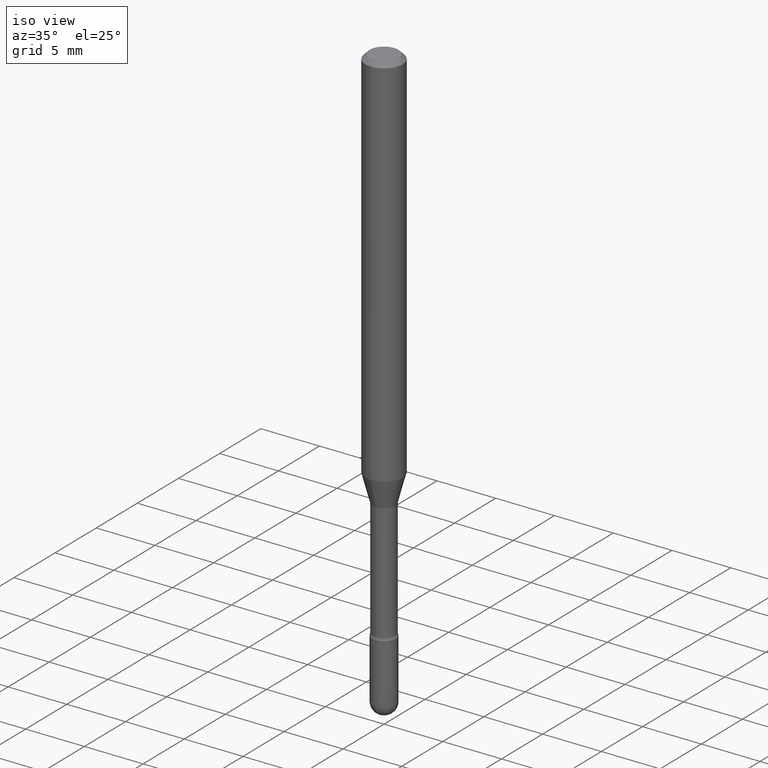
[diagram: clean part render]
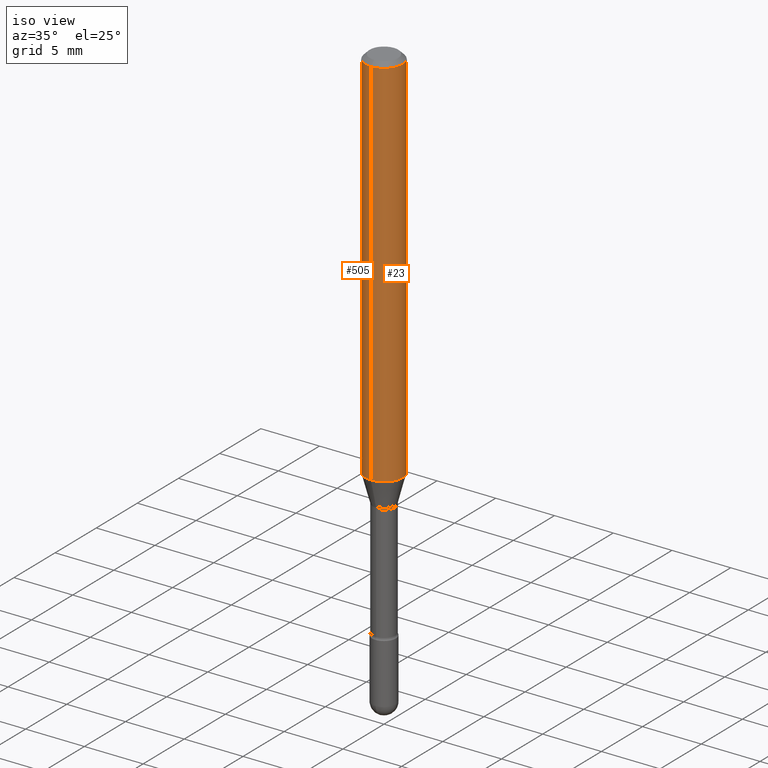
[diagram: same view with one multi-face feature highlighted, each face labeled with its STEP entity id]
A machine part, iso view. The highlighted faces form ONE feature: a constant-radius fillet chain: 2 tangent blend faces with common blend radius 1.5875 mm. The faces share edges in the B-rep.
Their STEP definitions:
[1] entity #505 (Cylinder):
#9 = EDGE_CURVE ( 'NONE', #51, #139, #204, .T. ) ;
#13 = CARTESIAN_POINT ( 'NONE',  ( 4.440892098500937762E-16, 0.06249999999999993755, -0.01500000000000030129 ) ) ;
#26 = VECTOR ( 'NONE', #31, 39.37007874015748143 ) ;
#31 = DIRECTION ( 'NONE',  ( -2.445487129029545488E-29, 3.491455099487080109E-15, 1.000000000000000000 ) ) ;
#51 = VERTEX_POINT ( 'NONE', #214 ) ;
#63 = FACE_OUTER_BOUND ( 'NONE', #565, .T. ) ;
#93 = CARTESIAN_POINT ( 'NONE',  ( 4.440892098500932831E-16, 0.06249999999999554523, -1.267071934891535356 ) ) ;
#103 = CYLINDRICAL_SURFACE ( 'NONE', #263, 0.06250000000000000000 ) ;
#106 = CARTESIAN_POINT ( 'NONE',  ( 3.668230693544338848E-31, -5.237182649230648981E-17, -0.01500000000000008271 ) ) ;
#107 = AXIS2_PLACEMENT_3D ( 'NONE', #106, #149, #326 ) ;
#111 = CARTESIAN_POINT ( 'NONE',  ( -1.169113584055446105E-44, 1.669184350826100908E-30, 4.780733988912460139E-16 ) ) ;
#120 = DIRECTION ( 'NONE',  ( -2.445487129029545488E-29, 3.491455099487080109E-15, 1.000000000000000000 ) ) ;
#123 = EDGE_CURVE ( 'NONE', #226, #498, #560, .T. ) ;
#139 = VERTEX_POINT ( 'NONE', #518 ) ;
#149 = DIRECTION ( 'NONE',  ( -2.445487129029545768E-29, 3.491455099487080109E-15, 1.000000000000000000 ) ) ;
#151 = DIRECTION ( 'NONE',  ( -2.445487129029545768E-29, 3.491455099487080109E-15, 1.000000000000000000 ) ) ;
#157 = CIRCLE ( 'NONE', #107, 0.06250000000000000000 ) ;
#204 = LINE ( 'NONE', #337, #403 ) ;
#214 = CARTESIAN_POINT ( 'NONE',  ( -4.364351673553609038E-16, -0.06250000000000446865, -1.267071934891534690 ) ) ;
#226 = VERTEX_POINT ( 'NONE', #93 ) ;
#263 = AXIS2_PLACEMENT_3D ( 'NONE', #111, #494, #284 ) ;
#273 = AXIS2_PLACEMENT_3D ( 'NONE', #421, #151, #324 ) ;
#275 = ORIENTED_EDGE ( 'NONE', *, *, #9, .T. ) ;
#284 = DIRECTION ( 'NONE',  ( -6.982962677686265922E-15, -1.000000000000000000, 3.491455099487080503E-15 ) ) ;
#324 = DIRECTION ( 'NONE',  ( -6.982962677686265922E-15, -1.000000000000000000, 4.370956789862821150E-15 ) ) ;
#326 = DIRECTION ( 'NONE',  ( -6.982962677686265922E-15, -1.000000000000000000, 3.483106191921935554E-15 ) ) ;
#333 = ORIENTED_EDGE ( 'NONE', *, *, #462, .F. ) ;
#337 = CARTESIAN_POINT ( 'NONE',  ( -4.364351673553916201E-16, -0.06250000000000000000, 6.962893426091885454E-16 ) ) ;
#390 = CARTESIAN_POINT ( 'NONE',  ( 4.440892098500625669E-16, 0.06250000000000000000, 2.598574551733035811E-16 ) ) ;
#403 = VECTOR ( 'NONE', #120, 39.37007874015748143 ) ;
#413 = EDGE_CURVE ( 'NONE', #226, #51, #512, .T. ) ;
#414 = ORIENTED_EDGE ( 'NONE', *, *, #123, .F. ) ;
#421 = CARTESIAN_POINT ( 'NONE',  ( 3.098608108331811398E-29, -4.423924768494011913E-15, -1.267071934891534912 ) ) ;
#452 = ORIENTED_EDGE ( 'NONE', *, *, #413, .T. ) ;
#462 = EDGE_CURVE ( 'NONE', #498, #139, #157, .T. ) ;
#494 = DIRECTION ( 'NONE',  ( -2.445487129029545768E-29, 3.491455099487080109E-15, 1.000000000000000000 ) ) ;
#498 = VERTEX_POINT ( 'NONE', #13 ) ;
#505 = ADVANCED_FACE ( 'NONE', ( #63 ), #103, .T. ) ;
#512 = CIRCLE ( 'NONE', #273, 0.06250000000000000000 ) ;
#518 = CARTESIAN_POINT ( 'NONE',  ( -4.364351673553912750E-16, -0.06250000000000005551, -0.01499999999999986587 ) ) ;
#560 = LINE ( 'NONE', #390, #26 ) ;
#565 = EDGE_LOOP ( 'NONE', ( #414, #452, #275, #333 ) ) ;
[2] entity #23 (Cylinder):
#9 = EDGE_CURVE ( 'NONE', #51, #139, #204, .T. ) ;
#13 = CARTESIAN_POINT ( 'NONE',  ( 4.440892098500937762E-16, 0.06249999999999993755, -0.01500000000000030129 ) ) ;
#23 = ADVANCED_FACE ( 'NONE', ( #433 ), #302, .T. ) ;
#26 = VECTOR ( 'NONE', #31, 39.37007874015748143 ) ;
#31 = DIRECTION ( 'NONE',  ( -2.445487129029545488E-29, 3.491455099487080109E-15, 1.000000000000000000 ) ) ;
#33 = DIRECTION ( 'NONE',  ( -2.445487129029545768E-29, 3.491455099487080109E-15, 1.000000000000000000 ) ) ;
#51 = VERTEX_POINT ( 'NONE', #214 ) ;
#76 = DIRECTION ( 'NONE',  ( -6.982962677686265922E-15, -1.000000000000000000, 4.370956789862821150E-15 ) ) ;
#86 = CARTESIAN_POINT ( 'NONE',  ( 3.098608108331811398E-29, -4.423924768494011913E-15, -1.267071934891534912 ) ) ;
#87 = CIRCLE ( 'NONE', #426, 0.06250000000000000000 ) ;
#91 = EDGE_CURVE ( 'NONE', #51, #226, #359, .T. ) ;
#93 = CARTESIAN_POINT ( 'NONE',  ( 4.440892098500932831E-16, 0.06249999999999554523, -1.267071934891535356 ) ) ;
#120 = DIRECTION ( 'NONE',  ( -2.445487129029545488E-29, 3.491455099487080109E-15, 1.000000000000000000 ) ) ;
#123 = EDGE_CURVE ( 'NONE', #226, #498, #560, .T. ) ;
#124 = CARTESIAN_POINT ( 'NONE',  ( -1.169113584055446105E-44, 1.669184350826100908E-30, 4.780733988912460139E-16 ) ) ;
#128 = DIRECTION ( 'NONE',  ( -2.445487129029545768E-29, 3.491455099487080109E-15, 1.000000000000000000 ) ) ;
#139 = VERTEX_POINT ( 'NONE', #518 ) ;
#195 = CARTESIAN_POINT ( 'NONE',  ( 3.668230693544338848E-31, -5.237182649230648981E-17, -0.01500000000000008271 ) ) ;
#199 = AXIS2_PLACEMENT_3D ( 'NONE', #124, #128, #298 ) ;
#200 = DIRECTION ( 'NONE',  ( -2.445487129029545768E-29, 3.491455099487080109E-15, 1.000000000000000000 ) ) ;
#204 = LINE ( 'NONE', #337, #403 ) ;
#214 = CARTESIAN_POINT ( 'NONE',  ( -4.364351673553609038E-16, -0.06250000000000446865, -1.267071934891534690 ) ) ;
#226 = VERTEX_POINT ( 'NONE', #93 ) ;
#276 = AXIS2_PLACEMENT_3D ( 'NONE', #86, #33, #76 ) ;
#298 = DIRECTION ( 'NONE',  ( -6.982962677686265922E-15, -1.000000000000000000, 3.491455099487080503E-15 ) ) ;
#302 = CYLINDRICAL_SURFACE ( 'NONE', #199, 0.06250000000000000000 ) ;
#311 = ORIENTED_EDGE ( 'NONE', *, *, #123, .T. ) ;
#314 = EDGE_LOOP ( 'NONE', ( #378, #311, #531, #542 ) ) ;
#337 = CARTESIAN_POINT ( 'NONE',  ( -4.364351673553916201E-16, -0.06250000000000000000, 6.962893426091885454E-16 ) ) ;
#357 = EDGE_CURVE ( 'NONE', #139, #498, #87, .T. ) ;
#359 = CIRCLE ( 'NONE', #276, 0.06250000000000000000 ) ;
#378 = ORIENTED_EDGE ( 'NONE', *, *, #91, .T. ) ;
#390 = CARTESIAN_POINT ( 'NONE',  ( 4.440892098500625669E-16, 0.06250000000000000000, 2.598574551733035811E-16 ) ) ;
#403 = VECTOR ( 'NONE', #120, 39.37007874015748143 ) ;
#426 = AXIS2_PLACEMENT_3D ( 'NONE', #195, #200, #449 ) ;
#433 = FACE_OUTER_BOUND ( 'NONE', #314, .T. ) ;
#449 = DIRECTION ( 'NONE',  ( -6.982962677686265922E-15, -1.000000000000000000, 3.483106191921935554E-15 ) ) ;
#498 = VERTEX_POINT ( 'NONE', #13 ) ;
#518 = CARTESIAN_POINT ( 'NONE',  ( -4.364351673553912750E-16, -0.06250000000000005551, -0.01499999999999986587 ) ) ;
#531 = ORIENTED_EDGE ( 'NONE', *, *, #357, .F. ) ;
#542 = ORIENTED_EDGE ( 'NONE', *, *, #9, .F. ) ;
#560 = LINE ( 'NONE', #390, #26 ) ;